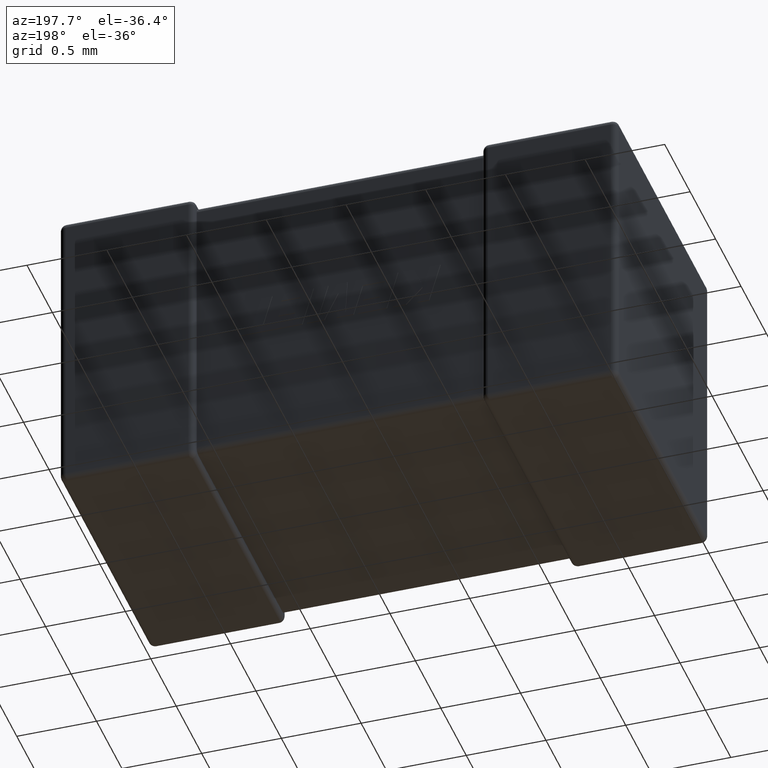
[diagram: clean part render]
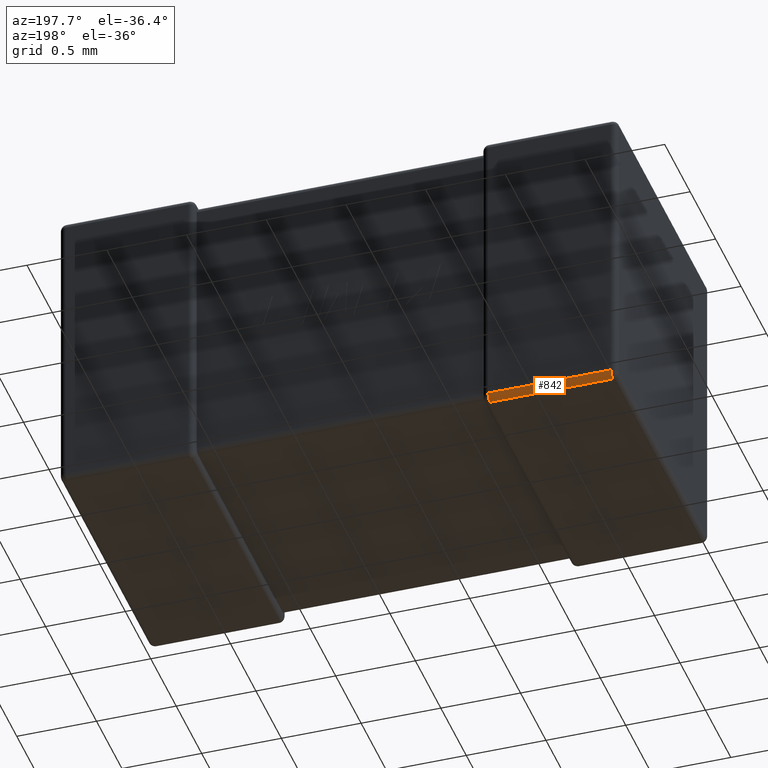
[diagram: same view with one face highlighted and labeled with its STEP entity id]
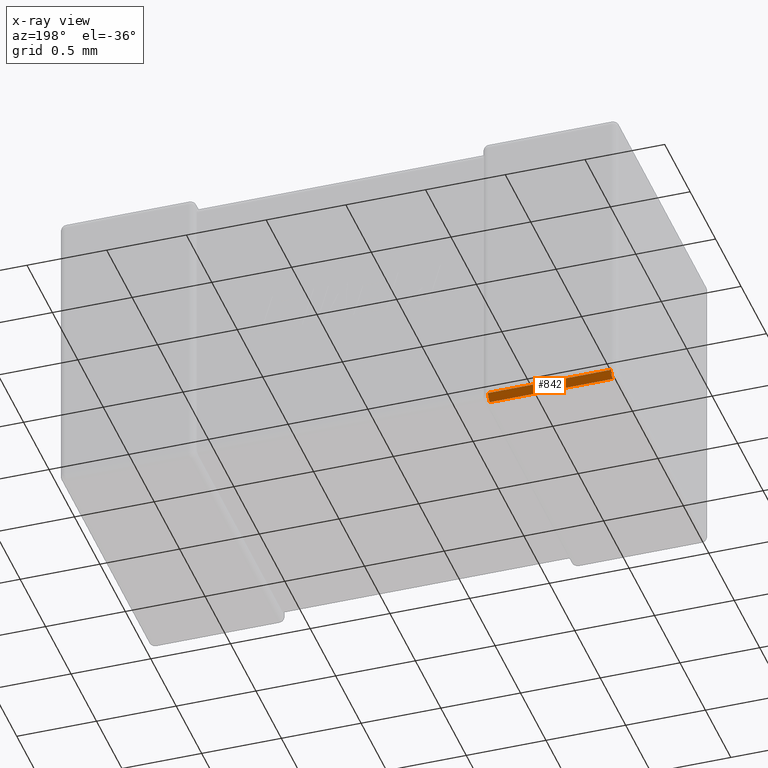
[diagram: x-ray of the same camera — body ghosted, the highlighted face saturated]
A machine part, auxiliary view. The second image highlights one B-rep face of the part: STEP entity #842.
The next image is the same camera in x-ray: the body ghosted, the highlighted face saturated — about 0% of this face is hidden behind the body in this view.
In plain terms, the highlighted cylindrical surface (edge-blend (fillet) strip) has radius 0.0395 mm, axis along (-1, 0, 0).
Its self-contained STEP definition (entity closure, byte-faithful):
#44 = VERTEX_POINT ( 'NONE', #4340 ) ;
#332 = CARTESIAN_POINT ( 'NONE',  ( 0.8104799999999998700, 1.800000000000000000, -1.860480000000000400 ) ) ;
#482 = VECTOR ( 'NONE', #805, 1000.000000000000000 ) ;
#564 = LINE ( 'NONE', #1921, #2812 ) ;
#805 = DIRECTION ( 'NONE',  ( -1.000000000000000000, 0.0000000000000000000, 0.0000000000000000000 ) ) ;
#842 = ADVANCED_FACE ( 'NONE', ( #4223 ), #1500, .T. ) ;
#887 = CIRCLE ( 'NONE', #1635, 0.03951999999999991600 ) ;
#1094 = CARTESIAN_POINT ( 'NONE',  ( 0.03951999999999991600, 1.760480000000000000, -1.900000000000000100 ) ) ;
#1452 = AXIS2_PLACEMENT_3D ( 'NONE', #4542, #2736, #3843 ) ;
#1500 = CYLINDRICAL_SURFACE ( 'NONE', #1452, 0.03951999999999991600 ) ;
#1548 = ORIENTED_EDGE ( 'NONE', *, *, #3181, .F. ) ;
#1555 = ORIENTED_EDGE ( 'NONE', *, *, #4075, .F. ) ;
#1635 = AXIS2_PLACEMENT_3D ( 'NONE', #1903, #2251, #2571 ) ;
#1780 = ORIENTED_EDGE ( 'NONE', *, *, #2219, .T. ) ;
#1874 = CARTESIAN_POINT ( 'NONE',  ( 3.500000000000000000, 1.800000000000000000, -1.860480000000000400 ) ) ;
#1896 = DIRECTION ( 'NONE',  ( 1.000000000000000000, -0.0000000000000000000, 0.0000000000000000000 ) ) ;
#1903 = CARTESIAN_POINT ( 'NONE',  ( 0.03951999999999991600, 1.760480000000000000, -1.860480000000000400 ) ) ;
#1921 = CARTESIAN_POINT ( 'NONE',  ( 3.500000000000000000, 1.760480000000000000, -1.900000000000000100 ) ) ;
#1938 = CARTESIAN_POINT ( 'NONE',  ( 0.03951999999999991600, 1.800000000000000000, -1.860480000000000400 ) ) ;
#2054 = CIRCLE ( 'NONE', #2276, 0.03951999999999991600 ) ;
#2132 = VERTEX_POINT ( 'NONE', #1094 ) ;
#2219 = EDGE_CURVE ( 'NONE', #2132, #3829, #887, .T. ) ;
#2251 = DIRECTION ( 'NONE',  ( 1.000000000000000000, -0.0000000000000000000, -0.0000000000000000000 ) ) ;
#2276 = AXIS2_PLACEMENT_3D ( 'NONE', #3345, #1896, #4425 ) ;
#2295 = ORIENTED_EDGE ( 'NONE', *, *, #4050, .F. ) ;
#2381 = DIRECTION ( 'NONE',  ( 1.000000000000000000, -0.0000000000000000000, -0.0000000000000000000 ) ) ;
#2571 = DIRECTION ( 'NONE',  ( 0.0000000000000000000, 0.0000000000000000000, 1.000000000000000000 ) ) ;
#2736 = DIRECTION ( 'NONE',  ( -1.000000000000000000, 0.0000000000000000000, 0.0000000000000000000 ) ) ;
#2812 = VECTOR ( 'NONE', #2381, 1000.000000000000000 ) ;
#3181 = EDGE_CURVE ( 'NONE', #3422, #3829, #4303, .T. ) ;
#3345 = CARTESIAN_POINT ( 'NONE',  ( 0.8104799999999998700, 1.760480000000000000, -1.860480000000000400 ) ) ;
#3422 = VERTEX_POINT ( 'NONE', #332 ) ;
#3829 = VERTEX_POINT ( 'NONE', #1938 ) ;
#3843 = DIRECTION ( 'NONE',  ( 0.0000000000000000000, 0.0000000000000000000, 1.000000000000000000 ) ) ;
#4050 = EDGE_CURVE ( 'NONE', #2132, #44, #564, .T. ) ;
#4075 = EDGE_CURVE ( 'NONE', #44, #3422, #2054, .T. ) ;
#4223 = FACE_OUTER_BOUND ( 'NONE', #4563, .T. ) ;
#4303 = LINE ( 'NONE', #1874, #482 ) ;
#4340 = CARTESIAN_POINT ( 'NONE',  ( 0.8104799999999998700, 1.760480000000000000, -1.900000000000000100 ) ) ;
#4425 = DIRECTION ( 'NONE',  ( 0.0000000000000000000, 0.0000000000000000000, -1.000000000000000000 ) ) ;
#4542 = CARTESIAN_POINT ( 'NONE',  ( 3.500000000000000000, 1.760480000000000000, -1.860480000000000400 ) ) ;
#4563 = EDGE_LOOP ( 'NONE', ( #1780, #1548, #1555, #2295 ) ) ;